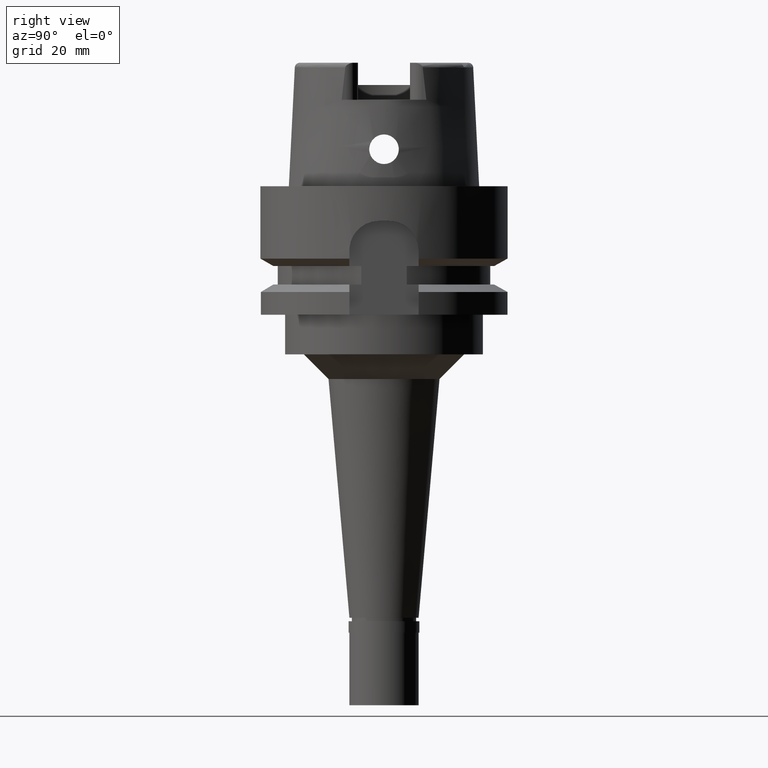
[diagram: clean part render]
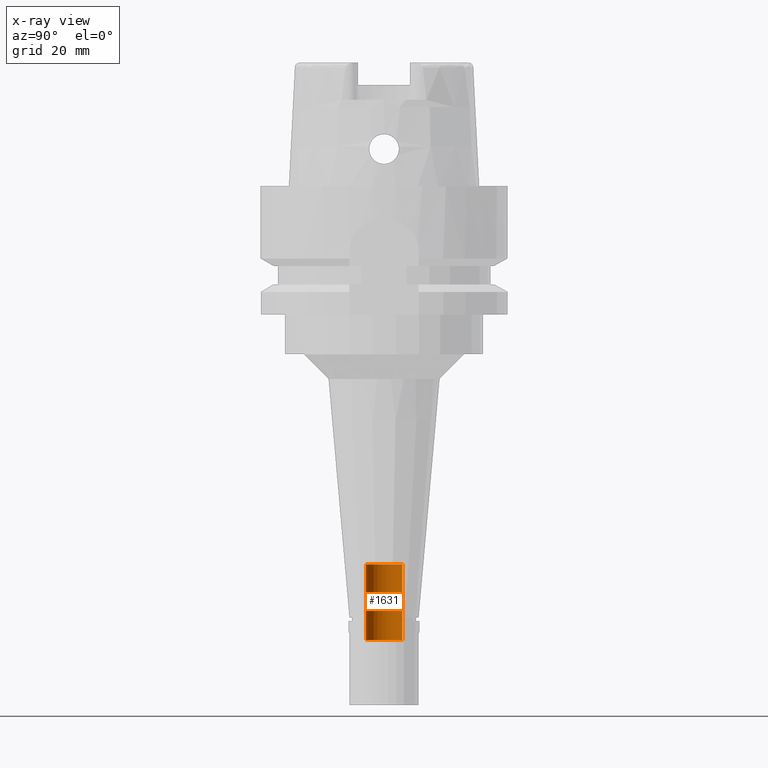
[diagram: x-ray — body ghosted, one internal face saturated and labeled with its STEP entity id]
A machine part, right view, then the same camera in x-ray: the body is ghosted and one INTERNAL B-rep face — a face not visible from any outside direction — is saturated and labeled: STEP entity #1631.
In plain terms, the highlighted cylindrical surface (edge-blend (fillet) strip) has radius 3.7 mm, axis along (0, 0, 1).
Its self-contained STEP definition (entity closure, byte-faithful):
#16 = LINE ( 'NONE', #4888, #1781 ) ;
#40 = ORIENTED_EDGE ( 'NONE', *, *, #3772, .F. ) ;
#177 = CARTESIAN_POINT ( 'NONE',  ( 0.0000000000000000000, 0.0000000000000000000, -76.50000000000000000 ) ) ;
#240 = ORIENTED_EDGE ( 'NONE', *, *, #4870, .T. ) ;
#487 = CYLINDRICAL_SURFACE ( 'NONE', #1865, 3.700000000000000178 ) ;
#507 = EDGE_LOOP ( 'NONE', ( #973, #40, #240, #3001 ) ) ;
#702 = CARTESIAN_POINT ( 'NONE',  ( 0.0000000000000000000, -3.700000000000000178, -76.50000000000000000 ) ) ;
#792 = DIRECTION ( 'NONE',  ( 0.0000000000000000000, 1.000000000000000000, 0.0000000000000000000 ) ) ;
#973 = ORIENTED_EDGE ( 'NONE', *, *, #2426, .T. ) ;
#1200 = CARTESIAN_POINT ( 'NONE',  ( 0.0000000000000000000, -3.700000000000000178, -91.85595815778998485 ) ) ;
#1321 = AXIS2_PLACEMENT_3D ( 'NONE', #4680, #1871, #3489 ) ;
#1631 = ADVANCED_FACE ( 'NONE', ( #4221 ), #487, .F. ) ;
#1677 = DIRECTION ( 'NONE',  ( 0.0000000000000000000, 1.538526331033999949E-14, 1.000000000000000000 ) ) ;
#1702 = VERTEX_POINT ( 'NONE', #702 ) ;
#1781 = VECTOR ( 'NONE', #1677, 1000.000000000000000 ) ;
#1837 = DIRECTION ( 'NONE',  ( 0.0000000000000000000, 0.0000000000000000000, 1.000000000000000000 ) ) ;
#1865 = AXIS2_PLACEMENT_3D ( 'NONE', #3819, #4920, #792 ) ;
#1871 = DIRECTION ( 'NONE',  ( 0.0000000000000000000, 0.0000000000000000000, -1.000000000000000000 ) ) ;
#2426 = EDGE_CURVE ( 'NONE', #5205, #1702, #4831, .T. ) ;
#2730 = EDGE_CURVE ( 'NONE', #2991, #5205, #16, .T. ) ;
#2871 = VERTEX_POINT ( 'NONE', #4539 ) ;
#2991 = VERTEX_POINT ( 'NONE', #5030 ) ;
#3001 = ORIENTED_EDGE ( 'NONE', *, *, #2730, .T. ) ;
#3067 = VECTOR ( 'NONE', #4540, 1000.000000000000000 ) ;
#3367 = AXIS2_PLACEMENT_3D ( 'NONE', #177, #1837, #3507 ) ;
#3489 = DIRECTION ( 'NONE',  ( 0.0000000000000000000, -1.000000000000000000, 0.0000000000000000000 ) ) ;
#3507 = DIRECTION ( 'NONE',  ( 0.0000000000000000000, 1.000000000000000000, 0.0000000000000000000 ) ) ;
#3685 = CIRCLE ( 'NONE', #1321, 3.700000000000000178 ) ;
#3772 = EDGE_CURVE ( 'NONE', #2871, #1702, #5358, .T. ) ;
#3819 = CARTESIAN_POINT ( 'NONE',  ( 0.0000000000000000000, 0.0000000000000000000, -107.3000000000000114 ) ) ;
#4221 = FACE_OUTER_BOUND ( 'NONE', #507, .T. ) ;
#4539 = CARTESIAN_POINT ( 'NONE',  ( 0.0000000000000000000, -3.700000000000000178, -91.85595815778998485 ) ) ;
#4540 = DIRECTION ( 'NONE',  ( 0.0000000000000000000, -1.538526331033999949E-14, 1.000000000000000000 ) ) ;
#4680 = CARTESIAN_POINT ( 'NONE',  ( 0.0000000000000000000, 0.0000000000000000000, -91.85595815778998485 ) ) ;
#4831 = CIRCLE ( 'NONE', #3367, 3.700000000000000178 ) ;
#4870 = EDGE_CURVE ( 'NONE', #2871, #2991, #3685, .T. ) ;
#4888 = CARTESIAN_POINT ( 'NONE',  ( 0.0000000000000000000, 3.700000000000000178, -91.85595815778998485 ) ) ;
#4920 = DIRECTION ( 'NONE',  ( 0.0000000000000000000, 0.0000000000000000000, 1.000000000000000000 ) ) ;
#4978 = CARTESIAN_POINT ( 'NONE',  ( 0.0000000000000000000, 3.700000000000000178, -76.50000000000000000 ) ) ;
#5030 = CARTESIAN_POINT ( 'NONE',  ( 0.0000000000000000000, 3.700000000000000178, -91.85595815778998485 ) ) ;
#5205 = VERTEX_POINT ( 'NONE', #4978 ) ;
#5358 = LINE ( 'NONE', #1200, #3067 ) ;